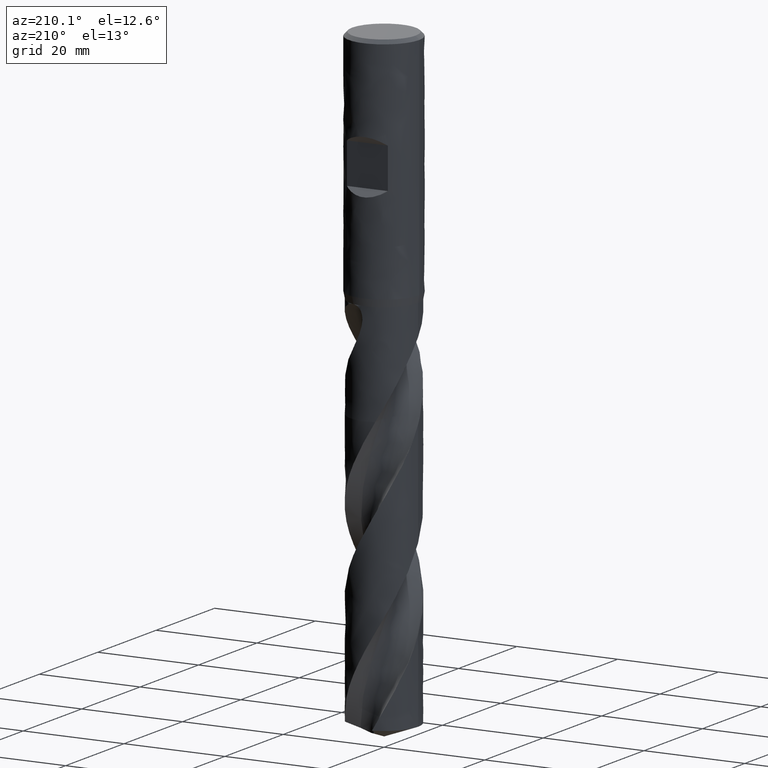
[diagram: clean part render]
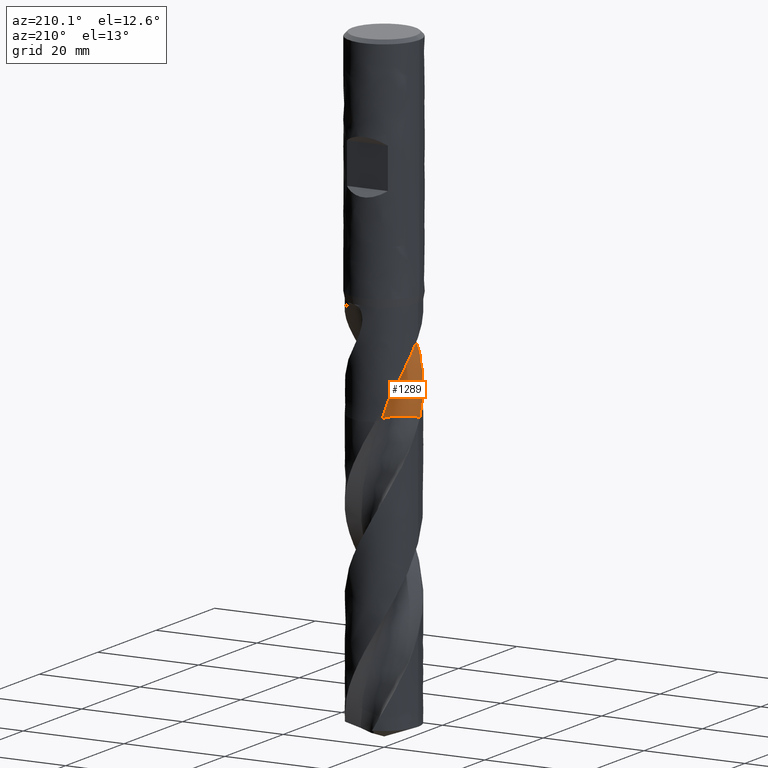
[diagram: same view with one face highlighted and labeled with its STEP entity id]
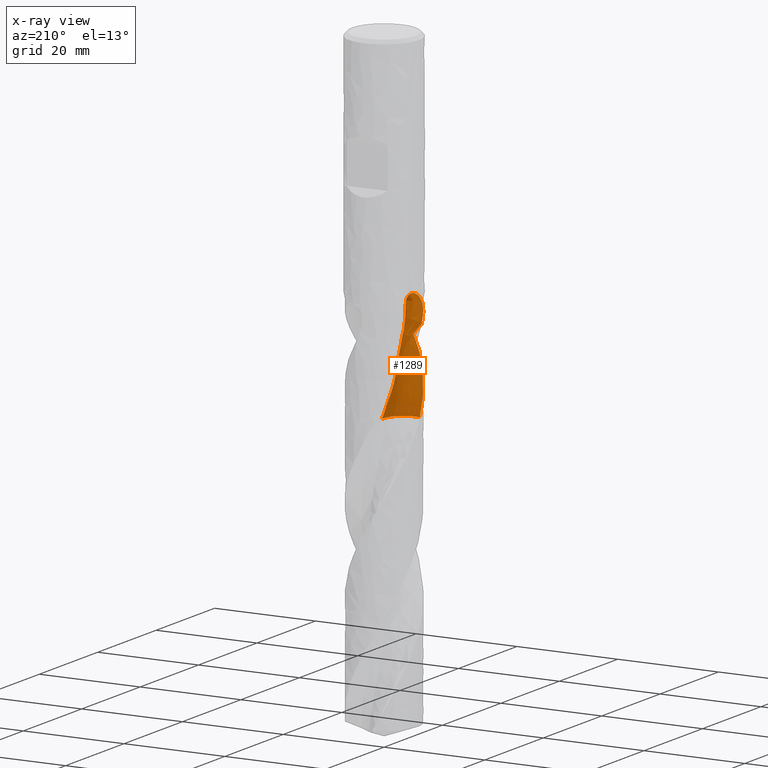
[diagram: x-ray of the same camera — body ghosted, the highlighted face saturated]
A machine part, auxiliary view. The second image highlights one B-rep face of the part: STEP entity #1289.
The next image is the same camera in x-ray: the body ghosted, the highlighted face saturated — about 0% of this face is hidden behind the body in this view.
In plain terms, the highlighted face is a freeform B-spline surface patch.
Its self-contained STEP definition (entity closure, byte-faithful):
#72 = EDGE_CURVE('', #73, #75, #77, .T.);
#73 = VERTEX_POINT('', #74);
#74 = CARTESIAN_POINT('', (-6.54722670223356, -1.64204826651347, -50.9853289528982));
#75 = VERTEX_POINT('', #76);
#76 = CARTESIAN_POINT('', (-2.74245032595894, -6.16777643966184, -47.));
#77 = B_SPLINE_CURVE_WITH_KNOTS('', 3, (#78, #79, #80, #81, #82, #83, #84, #85, #86, #87, #88, #89, #90, #91, #92, #93, #94, #95, #96, #97, #98, #99, #100, #101, #102, #103, #104, #105, #106, #107, #108, #109, #110, #111, #112, #113, #114, #115, #116, #117, #118, #119, #120, #121, #122, #123, #124, #125, #126, #127, #128, #129, #130, #131, #132, #133, #134, #135), .UNSPECIFIED., .F., .U., (4, 3, 3, 3, 3, 3, 3, 3, 3, 3, 3, 3, 3, 3, 3, 3, 3, 3, 3, 4), (0., 0.447005675161444, 0.894185619436533, 1.34151582994481, 1.78897778587421, 2.23655197864527, 2.6842086120813, 3.13192121736932, 3.57966739757167, 4.02742049961439, 4.47514763869665, 4.92280671514513, 5.37034191744391, 5.66765224759957, 5.96487297666363, 6.26197587823822, 6.55892470282943, 6.85567270727081, 7.15215970033952, 7.45692063994909), .UNSPECIFIED.);
#78 = CARTESIAN_POINT('', (-6.54722670223356, -1.64204826651347, -50.9853289528982));
#79 = CARTESIAN_POINT('', (-6.52383816333729, -1.73530378738378, -50.871495970807));
#80 = CARTESIAN_POINT('', (-6.49805232952242, -1.82967051163066, -50.7590243652782));
#81 = CARTESIAN_POINT('', (-6.46970892616913, -1.92493283276296, -50.6480139811013));
#82 = CARTESIAN_POINT('', (-6.44135447288951, -2.02023229275321, -50.5369603185448));
#83 = CARTESIAN_POINT('', (-6.41042866490252, -2.11646671921943, -50.4273199216285));
#84 = CARTESIAN_POINT('', (-6.37678460914436, -2.21339514063378, -50.3191911248318));
#85 = CARTESIAN_POINT('', (-6.34312924794733, -2.31035613298286, -50.2110259934294));
#86 = CARTESIAN_POINT('', (-6.30673833457635, -2.40805596596318, -50.1043238123564));
#87 = CARTESIAN_POINT('', (-6.2674758259275, -2.50624156286189, -49.9991959996608));
#88 = CARTESIAN_POINT('', (-6.22820175388406, -2.6044560768838, -49.8940372252558));
#89 = CARTESIAN_POINT('', (-6.18603491741344, -2.70320515293542, -49.790401652276));
#90 = CARTESIAN_POINT('', (-6.14085072235636, -2.8022227616194, -49.688417275917));
#91 = CARTESIAN_POINT('', (-6.09565519375175, -2.90126520688116, -49.5864073188261));
#92 = CARTESIAN_POINT('', (-6.04741614879518, -3.00063003343426, -49.485995281843));
#93 = CARTESIAN_POINT('', (-5.99602227382602, -3.10003498234869, -49.3873271569904));
#94 = CARTESIAN_POINT('', (-5.94461893239232, -3.19945824109916, -49.2886408580205));
#95 = CARTESIAN_POINT('', (-5.89003033678812, -3.29897772345852, -49.1916389227777));
#96 = CARTESIAN_POINT('', (-5.83216335795116, -3.39828935880637, -49.0964817615112));
#97 = CARTESIAN_POINT('', (-5.77428914383223, -3.49761341138594, -49.0013127024593));
#98 = CARTESIAN_POINT('', (-5.71309861062836, -3.59679313478255, -48.9079277478441));
#99 = CARTESIAN_POINT('', (-5.64851279380133, -3.69551122556307, -48.8165206764602));
#100 = CARTESIAN_POINT('', (-5.58392213354743, -3.79423671942182, -48.725106750267));
#101 = CARTESIAN_POINT('', (-5.51588995973561, -3.89257019230152, -48.6356061370521));
#102 = CARTESIAN_POINT('', (-5.44435316938206, -3.99017776133338, -48.5482537900581));
#103 = CARTESIAN_POINT('', (-5.37281527312015, -4.08778683930947, -48.4609000926584));
#104 = CARTESIAN_POINT('', (-5.29771621088348, -4.18474670410528, -48.3756255492758));
#105 = CARTESIAN_POINT('', (-5.21901158006884, -4.28070299449836, -48.2927169093362));
#106 = CARTESIAN_POINT('', (-5.14031151294167, -4.37665372086663, -48.2098130768534));
#107 = CARTESIAN_POINT('', (-5.05793629823484, -4.47168589548326, -48.1292007283162));
#108 = CARTESIAN_POINT('', (-4.9718649416733, -4.56541991516223, -48.0512331515216));
#109 = CARTESIAN_POINT('', (-4.88580666951678, -4.65913968557262, -47.9732774272106));
#110 = CARTESIAN_POINT('', (-4.79596590011325, -4.75165631556474, -47.8978858022151));
#111 = CARTESIAN_POINT('', (-4.7023529737028, -4.84255888045859, -47.8254989233641));
#112 = CARTESIAN_POINT('', (-4.60876595142848, -4.93343629121502, -47.7531320750756));
#113 = CARTESIAN_POINT('', (-4.51129825753647, -5.02280692739477, -47.6836818578372));
#114 = CARTESIAN_POINT('', (-4.4100052784259, -5.11022048881021, -47.6177061280667));
#115 = CARTESIAN_POINT('', (-4.34271347901632, -5.16829179732632, -47.5738765792411));
#116 = CARTESIAN_POINT('', (-4.27368461828995, -5.2255421784225, -47.5315496124812));
#117 = CARTESIAN_POINT('', (-4.20295108385997, -5.28182754230771, -47.4909267444121));
#118 = CARTESIAN_POINT('', (-4.13223886655643, -5.33809594334456, -47.4503161189493));
#119 = CARTESIAN_POINT('', (-4.059773859824, -5.39343871954625, -47.4113801304974));
#120 = CARTESIAN_POINT('', (-3.98560704696645, -5.44770010804297, -47.3743590672945));
#121 = CARTESIAN_POINT('', (-3.91146963612734, -5.50193998564708, -47.3373526803861));
#122 = CARTESIAN_POINT('', (-3.83557245849917, -5.55514229974721, -47.3022298506109));
#123 = CARTESIAN_POINT('', (-3.757992985626, -5.60713730168843, -47.2692793143132));
#124 = CARTESIAN_POINT('', (-3.68045374531565, -5.65910533912338, -47.2363458660992));
#125 = CARTESIAN_POINT('', (-3.60116138117258, -5.70991533084474, -47.2055513822662));
#126 = CARTESIAN_POINT('', (-3.52023206356115, -5.7593807148578, -47.1772451276677));
#127 = CARTESIAN_POINT('', (-3.43935747671926, -5.80881264648781, -47.1489580159847));
#128 = CARTESIAN_POINT('', (-3.35675791648745, -5.8569560061402, -47.1231240263672));
#129 = CARTESIAN_POINT('', (-3.27260731757885, -5.9036040979159, -47.100167380578));
#130 = CARTESIAN_POINT('', (-3.18853073521966, -5.95021115931469, -47.0772309268222));
#131 = CARTESIAN_POINT('', (-3.10279164458078, -5.99538747516859, -47.0571356852069));
#132 = CARTESIAN_POINT('', (-3.01565156437777, -6.03890268527867, -47.0403963992122));
#133 = CARTESIAN_POINT('', (-2.9260797000425, -6.08363225733575, -47.0231899765109));
#134 = CARTESIAN_POINT('', (-2.83486815396566, -6.1266836236331, -47.0094994745342));
#135 = CARTESIAN_POINT('', (-2.74245032595894, -6.16777643966184, -47.));
#198 = EDGE_CURVE('', #199, #201, #203, .T.);
#199 = VERTEX_POINT('', #200);
#200 = CARTESIAN_POINT('', (-2.44736411556141, -6.29455424691108, -46.98));
#201 = VERTEX_POINT('', #202);
#202 = CARTESIAN_POINT('', (-2.17123797644978, -6.39126166336681, -47.));
#203 = B_SPLINE_CURVE_WITH_KNOTS('', 3, (#204, #205, #206, #207, #208, #209, #210), .UNSPECIFIED., .F., .U., (4, 3, 4), (0., 0.19689662018653, 0.293451821174731), .UNSPECIFIED.);
#204 = CARTESIAN_POINT('', (-2.44736411556586, -6.29455424690935, -46.98));
#205 = CARTESIAN_POINT('', (-2.38618775038303, -6.31832466022391, -46.9800797117905));
#206 = CARTESIAN_POINT('', (-2.324400739008, -6.34077124786212, -46.9829088490396));
#207 = CARTESIAN_POINT('', (-2.26246833527036, -6.36165776112208, -46.9888852602719));
#208 = CARTESIAN_POINT('', (-2.23209759713933, -6.37190019943233, -46.9918160042694));
#209 = CARTESIAN_POINT('', (-2.20166392342064, -6.38177779128928, -46.9955059529503));
#210 = CARTESIAN_POINT('', (-2.17123797644978, -6.39126166336683, -47.));
#277 = EDGE_CURVE('', #278, #75, #280, .T.);
#278 = VERTEX_POINT('', #279);
#279 = CARTESIAN_POINT('', (-2.45269745120124, -6.292478009045, -46.98));
#280 = B_SPLINE_CURVE_WITH_KNOTS('', 3, (#281, #282, #283, #284, #285, #286, #287), .UNSPECIFIED., .F., .U., (4, 3, 4), (0., 0.197586106187652, 0.316253546517637), .UNSPECIFIED.);
#281 = CARTESIAN_POINT('', (-2.45269745121663, -6.29247800903901, -46.98));
#282 = CARTESIAN_POINT('', (-2.51405737798457, -6.26854558933843, -46.9800798798869));
#283 = CARTESIAN_POINT('', (-2.57493647482688, -6.24323220399331, -46.9829136822102));
#284 = CARTESIAN_POINT('', (-2.63501549998615, -6.21675174322126, -46.9881197978159));
#285 = CARTESIAN_POINT('', (-2.67109811870227, -6.20084795039287, -46.9912465177301));
#286 = CARTESIAN_POINT('', (-2.70692645308333, -6.18450904810479, -46.9952317038916));
#287 = CARTESIAN_POINT('', (-2.74245032595892, -6.16777643966185, -47.));
#289 = EDGE_CURVE('', #199, #278, #290, .T.);
#290 = LINE('', #291, #292);
#291 = CARTESIAN_POINT('', (-2.44736411556141, -6.29455424691108, -46.98));
#292 = VECTOR('', #293, 0.00572321873805209);
#293 = DIRECTION('', (-0.0053333356398273, 0.00207623786607858, 7.105427357601E-15));
#1228 = VERTEX_POINT('', #1229);
#1229 = CARTESIAN_POINT('', (-3.8737926401678, -5.52776904193561, -57.0572358756335));
#1230 = VERTEX_POINT('', #1231);
#1231 = CARTESIAN_POINT('', (-5.18745572070359, -4.31888911014621, -60.1904486721386));
#1268 = EDGE_CURVE('', #1230, #1228, #1269, .T.);
#1269 = (
   BOUNDED_CURVE ()
   B_SPLINE_CURVE (3, (#1270, #1271, #1272, #1273, #1274, #1275), .UNSPECIFIED., .F., .U.)
   B_SPLINE_CURVE_WITH_KNOTS ((4, 1, 1, 4), (63.8595513278614, 64.6393548387097, 65.8824193548387, 66.9927641243665), .UNSPECIFIED.)
   CURVE ()
   GEOMETRIC_REPRESENTATION_ITEM ()
   RATIONAL_B_SPLINE_CURVE ((1., 1., 1., 1., 1., 1.))
   REPRESENTATION_ITEM ('')
);
#1270 = CARTESIAN_POINT('', (-5.1874557207036, -4.3188891101462, -60.1904486721386));
#1271 = CARTESIAN_POINT('', (-5.0762760431642, -4.41979413030436, -59.9305141685225));
#1272 = CARTESIAN_POINT('', (-4.77517443499129, -4.66612801323165, -59.2562248261967));
#1273 = CARTESIAN_POINT('', (-4.27550000826762, -4.9837177858849, -58.211820560695));
#1274 = CARTESIAN_POINT('', (-3.9973649673455, -5.33624240329892, -57.4273507988094));
#1275 = CARTESIAN_POINT('', (-3.8737926401678, -5.52776904193561, -57.0572358756335));
#1289 = ADVANCED_FACE('', (#1290), #1498, .T.);
#1290 = FACE_OUTER_BOUND('', #1291, .T.);
#1291 = EDGE_LOOP('', (#1292, #1303, #1352, #1353, #1474, #1475, #1476, #1477, #1478));
#1292 = ORIENTED_EDGE('', *, *, #1293, .T.);
#1293 = EDGE_CURVE('', #1294, #1296, #1298, .T.);
#1294 = VERTEX_POINT('', #1295);
#1295 = CARTESIAN_POINT('', (-1.71941206617508, 3.65714564950166, -67.25));
#1296 = VERTEX_POINT('', #1297);
#1297 = CARTESIAN_POINT('', (-6.71701838527332, -0.666456309070734, -67.25));
#1298 = CIRCLE('', #1299, 4.0501235625442);
#1299 = AXIS2_PLACEMENT_3D('', #1300, #1301, #1302);
#1300 = CARTESIAN_POINT('', (-5.7506711112143, 3.2666948056221, -67.25));
#1301 = DIRECTION('', (0., 0., -1.));
#1302 = DIRECTION('', (0.995342222051411, 0.0964046731323755, 0.));
#1303 = ORIENTED_EDGE('', *, *, #1304, .F.);
#1304 = EDGE_CURVE('', #1230, #1296, #1305, .T.);
#1305 = B_SPLINE_CURVE_WITH_KNOTS('', 3, (#1306, #1307, #1308, #1309, #1310, #1311, #1312, #1313, #1314, #1315, #1316, #1317, #1318, #1319, #1320, #1321, #1322, #1323, #1324, #1325, #1326, #1327, #1328, #1329, #1330, #1331, #1332, #1333, #1334, #1335, #1336, #1337, #1338, #1339, #1340, #1341, #1342, #1343, #1344, #1345, #1346, #1347, #1348, #1349, #1350, #1351), .UNSPECIFIED., .F., .U., (4, 3, 3, 3, 3, 3, 3, 3, 3, 3, 3, 3, 3, 3, 3, 4), (0., 0.443322495899435, 0.886607032329049, 1.55142846746694, 2.2162179070127, 2.88094727961477, 3.32414938394597, 3.76733655054551, 4.21053520502023, 4.65372307709331, 4.94920949350656, 5.61374677102459, 6.27824074149479, 7.27444952689723, 7.93881647012239, 8.12340381640079), .UNSPECIFIED.);
#1306 = CARTESIAN_POINT('', (-5.18745572070359, -4.31888911014621, -60.1904486721386));
#1307 = CARTESIAN_POINT('', (-5.23255945043565, -4.26471462340748, -60.320325469454));
#1308 = CARTESIAN_POINT('', (-5.27696470528058, -4.20965287196573, -60.4500798026125));
#1309 = CARTESIAN_POINT('', (-5.32062456864377, -4.15372774740284, -60.5797077344166));
#1310 = CARTESIAN_POINT('', (-5.36428069363302, -4.09780741142636, -60.7093245668345));
#1311 = CARTESIAN_POINT('', (-5.40719593969398, -4.04101820672637, -60.8388212621043));
#1312 = CARTESIAN_POINT('', (-5.44932354246726, -3.98338711770675, -60.9681943162301));
#1313 = CARTESIAN_POINT('', (-5.51250493282261, -3.89695418318759, -61.1622231452184));
#1314 = CARTESIAN_POINT('', (-5.57392086849325, -3.80861809049205, -61.3559970830385));
#1315 = CARTESIAN_POINT('', (-5.63342060237858, -3.71847715021871, -61.549501913184));
#1316 = CARTESIAN_POINT('', (-5.6929174727443, -3.62834054812192, -61.7429974306008));
#1317 = CARTESIAN_POINT('', (-5.75050910330292, -3.53638267722435, -61.9362489244888));
#1318 = CARTESIAN_POINT('', (-5.80604736686905, -3.44271897977087, -62.1292453310374));
#1319 = CARTESIAN_POINT('', (-5.86158061228425, -3.34906374528582, -62.3222242994265));
#1320 = CARTESIAN_POINT('', (-5.91506526129088, -3.25369474207618, -62.5149800193583));
#1321 = CARTESIAN_POINT('', (-5.96635233420531, -3.15676097038153, -62.707514708675));
#1322 = CARTESIAN_POINT('', (-6.00054751133684, -3.09213128292292, -62.8358854155806));
#1323 = CARTESIAN_POINT('', (-6.03376895398541, -3.02680088372566, -62.9641684226657));
#1324 = CARTESIAN_POINT('', (-6.06597649399452, -2.96081562653028, -63.092363450771));
#1325 = CARTESIAN_POINT('', (-6.09818294847723, -2.89483259330915, -63.2205541581773));
#1326 = CARTESIAN_POINT('', (-6.1293786869943, -2.82818799388666, -63.3486640225721));
#1327 = CARTESIAN_POINT('', (-6.1595205628668, -2.76094303375152, -63.4767009567124));
#1328 = CARTESIAN_POINT('', (-6.18966322004827, -2.69369633055664, -63.604741209704));
#1329 = CARTESIAN_POINT('', (-6.21875371865611, -2.62584467601466, -63.7327171986797));
#1330 = CARTESIAN_POINT('', (-6.24674528747483, -2.55747401030998, -63.8606504992893));
#1331 = CARTESIAN_POINT('', (-6.27473617529793, -2.4891050079677, -63.9885806874611));
#1332 = CARTESIAN_POINT('', (-6.3016298221982, -2.42021234590782, -64.1164768497568));
#1333 = CARTESIAN_POINT('', (-6.32737969800506, -2.35090751780528, -64.2443741836839));
#1334 = CARTESIAN_POINT('', (-6.34454789913309, -2.30469994628405, -64.3296471057388));
#1335 = CARTESIAN_POINT('', (-6.3612071496803, -2.2583114131598, -64.41492614548));
#1336 = CARTESIAN_POINT('', (-6.37734911431886, -2.21176813298693, -64.5002169309143));
#1337 = CARTESIAN_POINT('', (-6.41365175511333, -2.10709413453962, -64.6920325379999));
#1338 = CARTESIAN_POINT('', (-6.44734867683898, -2.00160888673902, -64.8839178900426));
#1339 = CARTESIAN_POINT('', (-6.47841898311349, -1.89541221881543, -65.0758154111083));
#1340 = CARTESIAN_POINT('', (-6.50948726457571, -1.78922247159339, -65.267700426457));
#1341 = CARTESIAN_POINT('', (-6.53793446832971, -1.68230515730875, -65.4596264446667));
#1342 = CARTESIAN_POINT('', (-6.56374245402018, -1.57473330989508, -65.6515212209429));
#1343 = CARTESIAN_POINT('', (-6.60243376383024, -1.41346168935707, -65.9392097034492));
#1344 = CARTESIAN_POINT('', (-6.63519723609327, -1.25067374018655, -66.2269103743257));
#1345 = CARTESIAN_POINT('', (-6.66191356972879, -1.08692575158655, -66.5145612908183));
#1346 = CARTESIAN_POINT('', (-6.67973056669941, -0.977722989836656, -66.7063943311473));
#1347 = CARTESIAN_POINT('', (-6.69486234179394, -0.868076315877112, -66.8982433380574));
#1348 = CARTESIAN_POINT('', (-6.70728776239558, -0.758149637221092, -67.0900879057658));
#1349 = CARTESIAN_POINT('', (-6.71074003442482, -0.727607669254097, -67.1433898949938));
#1350 = CARTESIAN_POINT('', (-6.71398383780436, -0.697040626245875, -67.196696875235));
#1351 = CARTESIAN_POINT('', (-6.71701838527332, -0.666456309070734, -67.25));
#1352 = ORIENTED_EDGE('', *, *, #1268, .T.);
#1353 = ORIENTED_EDGE('', *, *, #1354, .T.);
#1354 = EDGE_CURVE('', #1228, #201, #1355, .T.);
#1355 = B_SPLINE_CURVE_WITH_KNOTS('', 3, (#1356, #1357, #1358, #1359, #1360, #1361, #1362, #1363, #1364, #1365, #1366, #1367, #1368, #1369, #1370, #1371, #1372, #1373, #1374, #1375, #1376, #1377, #1378, #1379, #1380, #1381, #1382, #1383, #1384, #1385, #1386, #1387, #1388, #1389, #1390, #1391, #1392, #1393, #1394, #1395, #1396, #1397, #1398, #1399, #1400, #1401, #1402, #1403, #1404, #1405, #1406, #1407, #1408, #1409, #1410, #1411, #1412, #1413, #1414, #1415, #1416, #1417, #1418, #1419, #1420, #1421, #1422, #1423, #1424, #1425, #1426, #1427, #1428, #1429, #1430, #1431, #1432, #1433, #1434, #1435, #1436, #1437, #1438, #1439, #1440, #1441, #1442, #1443, #1444, #1445, #1446, #1447, #1448, #1449, #1450, #1451, #1452, #1453, #1454, #1455, #1456, #1457, #1458, #1459, #1460, #1461, #1462, #1463, #1464, #1465, #1466, #1467, #1468, #1469, #1470, #1471, #1472, #1473), .UNSPECIFIED., .F., .U., (4, 3, 3, 3, 3, 3, 3, 3, 3, 3, 3, 3, 3, 3, 3, 3, 3, 3, 3, 3, 3, 3, 3, 3, 3, 3, 3, 3, 3, 3, 3, 3, 3, 3, 3, 3, 3, 3, 3, 4), (0., 0.197017275695434, 0.640213026727463, 1.08326223483906, 1.52614046559948, 1.96882705650014, 2.41132286088462, 2.85363119329142, 3.29575577284397, 3.73768990085209, 4.17944159727816, 4.6210303804982, 5.06247458952747, 5.50380122508634, 5.94505486718475, 6.38628397998251, 6.82754792790252, 7.26894239894586, 7.71058975673982, 8.00554870894374, 8.30067858833429, 8.5960390467978, 8.79310162148612, 9.08902835786164, 9.28640288151484, 9.32534335015109, 9.52300075887349, 9.72089513743481, 9.91905869901922, 10.1175160292991, 10.3162744736453, 10.5153120844394, 10.7145673701716, 10.913938218402, 11.1132959630663, 11.3125119649147, 11.5114844060794, 11.7101527693812, 11.9084969608908, 11.9977415892307), .UNSPECIFIED.);
#1356 = CARTESIAN_POINT('', (-3.8737926401678, -5.52776904193561, -57.0572358756335));
#1357 = CARTESIAN_POINT('', (-3.84432775108923, -5.54841767424821, -57.0022966207147));
#1358 = CARTESIAN_POINT('', (-3.81457599010076, -5.56891592868017, -56.9474537066416));
#1359 = CARTESIAN_POINT('', (-3.78455348172066, -5.58924457722115, -56.8926973145499));
#1360 = CARTESIAN_POINT('', (-3.71701702786189, -5.63497442819886, -56.7695213126933));
#1361 = CARTESIAN_POINT('', (-3.64810210152141, -5.67984889805717, -56.6467731429346));
#1362 = CARTESIAN_POINT('', (-3.57801170127151, -5.72366423417413, -56.524330211667));
#1363 = CARTESIAN_POINT('', (-3.50794447645124, -5.76746508272595, -56.4019277662224));
#1364 = CARTESIAN_POINT('', (-3.43669439400152, -5.81021241833024, -56.2798155513104));
#1365 = CARTESIAN_POINT('', (-3.3644911348265, -5.85172619008049, -56.1578582428034));
#1366 = CARTESIAN_POINT('', (-3.29231573964891, -5.89322394122941, -56.035947998905));
#1367 = CARTESIAN_POINT('', (-3.21917982785218, -5.93349358120599, -55.9141786556292));
#1368 = CARTESIAN_POINT('', (-3.14533850966143, -5.97238190838804, -55.7924058494545));
#1369 = CARTESIAN_POINT('', (-3.07152914368434, -6.01125340802462, -55.6706857361463));
#1370 = CARTESIAN_POINT('', (-2.99700667599659, -6.04874899668077, -55.5489486640114));
#1371 = CARTESIAN_POINT('', (-2.92205426625909, -6.08474312235474, -55.4270423017278));
#1372 = CARTESIAN_POINT('', (-2.84713415907928, -6.12072173548783, -55.3051884779459));
#1373 = CARTESIAN_POINT('', (-2.77177674055466, -6.1552040828554, -55.1831510906455));
#1374 = CARTESIAN_POINT('', (-2.69627030744686, -6.18810362139993, -55.0607900006046));
#1375 = CARTESIAN_POINT('', (-2.62079586411208, -6.2209892214133, -54.938480751226));
#1376 = CARTESIAN_POINT('', (-2.5451632711564, -6.25229756680881, -54.8158333727693));
#1377 = CARTESIAN_POINT('', (-2.46966505903469, -6.28197854948455, -54.6927217729814));
#1378 = CARTESIAN_POINT('', (-2.39419821193813, -6.31164720147401, -54.5696613187547));
#1379 = CARTESIAN_POINT('', (-2.31885403995536, -6.33969445527025, -54.4461217591436));
#1380 = CARTESIAN_POINT('', (-2.24393725871369, -6.36610128563445, -54.3219867338101));
#1381 = CARTESIAN_POINT('', (-2.16905274895692, -6.3924967408753, -54.1979051814305));
#1382 = CARTESIAN_POINT('', (-2.09458729279089, -6.41725593163412, -54.0732077686219));
#1383 = CARTESIAN_POINT('', (-2.02086793401737, -6.44038762756251, -53.9477843964566));
#1384 = CARTESIAN_POINT('', (-1.947179006791, -6.46350977466537, -53.8224127993926));
#1385 = CARTESIAN_POINT('', (-1.87422251124553, -6.48500998018359, -53.6962943807077));
#1386 = CARTESIAN_POINT('', (-1.80233550286846, -6.50492788085308, -53.569336654309));
#1387 = CARTESIAN_POINT('', (-1.73047500563579, -6.5248384360181, -53.4424257485346));
#1388 = CARTESIAN_POINT('', (-1.65966820989109, -6.54317206046539, -53.3146507083584));
#1389 = CARTESIAN_POINT('', (-1.59026973336622, -6.55999559261585, -53.1859356762294));
#1390 = CARTESIAN_POINT('', (-1.52089397759188, -6.57681361681719, -53.0572627848256));
#1391 = CARTESIAN_POINT('', (-1.45291000164101, -6.59212629977711, -52.9276187834857));
#1392 = CARTESIAN_POINT('', (-1.38670221616771, -6.60602429330046, -52.7969438841047));
#1393 = CARTESIAN_POINT('', (-1.32051206435898, -6.61991858525677, -52.6663037884454));
#1394 = CARTESIAN_POINT('', (-1.25607730385153, -6.63240324566316, -52.5345956615855));
#1395 = CARTESIAN_POINT('', (-1.19380536489183, -6.64359306029172, -52.4017874697972));
#1396 = CARTESIAN_POINT('', (-1.13154372543356, -6.65478102417477, -52.2690012438925));
#1397 = CARTESIAN_POINT('', (-1.07142115242092, -6.66467880858804, -52.1350684313664));
#1398 = CARTESIAN_POINT('', (-1.01388426369552, -6.67342031493825, -51.999987135191));
#1399 = CARTESIAN_POINT('', (-0.956350573447147, -6.68216133534792, -51.8649133481881));
#1400 = CARTESIAN_POINT('', (-0.901376134610867, -6.68975024022903, -51.7286314858368));
#1401 = CARTESIAN_POINT('', (-0.849473711603073, -6.69633440124485, -51.5911751429627));
#1402 = CARTESIAN_POINT('', (-0.797567190889125, -6.70291908208145, -51.4537079478841));
#1403 = CARTESIAN_POINT('', (-0.748702808124832, -6.70850304434267, -51.3149892874629));
#1404 = CARTESIAN_POINT('', (-0.703464337917372, -6.7132434728139, -51.1751111841432));
#1405 = CARTESIAN_POINT('', (-0.658212486452607, -6.71798530347432, -51.0351917057531));
#1406 = CARTESIAN_POINT('', (-0.616553756701516, -6.72188726588264, -50.8940107357322));
#1407 = CARTESIAN_POINT('', (-0.579182758510351, -6.72510574877781, -50.7517408326816));
#1408 = CARTESIAN_POINT('', (-0.541790349470341, -6.72832607562829, -50.6093894193815));
#1409 = CARTESIAN_POINT('', (-0.508653994961064, -6.73086626478905, -50.4658099081943));
#1410 = CARTESIAN_POINT('', (-0.480626187403154, -6.73286703180616, -50.3213006470301));
#1411 = CARTESIAN_POINT('', (-0.461907513773705, -6.73420326564195, -50.224788578058));
#1412 = CARTESIAN_POINT('', (-0.44545696012061, -6.73529965940975, -50.1277983812117));
#1413 = CARTESIAN_POINT('', (-0.431578389513726, -6.73618884041301, -50.0304672538391));
#1414 = CARTESIAN_POINT('', (-0.417691776346986, -6.73707853669206, -49.9330797235817));
#1415 = CARTESIAN_POINT('', (-0.406369725341744, -6.73776182832631, -49.8352806535715));
#1416 = CARTESIAN_POINT('', (-0.397969559472723, -6.73825795215151, -49.7372645747432));
#1417 = CARTESIAN_POINT('', (-0.389562830722091, -6.73875446358833, -49.6391719179127));
#1418 = CARTESIAN_POINT('', (-0.384074577339882, -6.73906457471609, -49.5407715334656));
#1419 = CARTESIAN_POINT('', (-0.381927870307664, -6.73918623439672, -49.4423415289761));
#1420 = CARTESIAN_POINT('', (-0.380495601353752, -6.73926740494347, -49.3766696708939));
#1421 = CARTESIAN_POINT('', (-0.380551080869951, -6.73926433100634, -49.3109450365284));
#1422 = CARTESIAN_POINT('', (-0.382236070578344, -6.73916876078574, -49.2452791960708));
#1423 = CARTESIAN_POINT('', (-0.384766401393416, -6.73902524401945, -49.1466695138992));
#1424 = CARTESIAN_POINT('', (-0.390973756267927, -6.7386755684079, -49.0480638428963));
#1425 = CARTESIAN_POINT('', (-0.40139053526363, -6.73805503377649, -48.9499751165246));
#1426 = CARTESIAN_POINT('', (-0.408338223794443, -6.73764115523079, -48.8845527897674));
#1427 = CARTESIAN_POINT('', (-0.417166320851032, -6.73710554131922, -48.8192977415849));
#1428 = CARTESIAN_POINT('', (-0.428044571150469, -6.73641431661637, -48.7544154759914));
#1429 = CARTESIAN_POINT('', (-0.430190765891118, -6.73627794332277, -48.7416147062587));
#1430 = CARTESIAN_POINT('', (-0.432416987036339, -6.73613545709875, -48.728827150121));
#1431 = CARTESIAN_POINT('', (-0.434724557607755, -6.73598653197976, -48.7160546251296));
#1432 = CARTESIAN_POINT('', (-0.446437524491917, -6.73523060494178, -48.6512227347835));
#1433 = CARTESIAN_POINT('', (-0.460255792422476, -6.73430953831964, -48.5867301551871));
#1434 = CARTESIAN_POINT('', (-0.476351001309317, -6.73317085209915, -48.5228506853291));
#1435 = CARTESIAN_POINT('', (-0.492465506609494, -6.73203080071712, -48.4588946309009));
#1436 = CARTESIAN_POINT('', (-0.51088487474905, -6.73067124621673, -48.3954695630746));
#1437 = CARTESIAN_POINT('', (-0.531766845023371, -6.72902103002613, -48.3329189915326));
#1438 = CARTESIAN_POINT('', (-0.552677219701736, -6.72736856915234, -48.2702833364624));
#1439 = CARTESIAN_POINT('', (-0.576092538243449, -6.72542198915133, -48.2084245615764));
#1440 = CARTESIAN_POINT('', (-0.602132996461561, -6.72308975505847, -48.1477644024757));
#1441 = CARTESIAN_POINT('', (-0.62821205850461, -6.72075406353196, -48.0870143173781));
#1442 = CARTESIAN_POINT('', (-0.656977802362131, -6.71802671316105, -48.0273490462495));
#1443 = CARTESIAN_POINT('', (-0.688478906378796, -6.71479685437106, -47.9692681179749));
#1444 = CARTESIAN_POINT('', (-0.720027806188699, -6.71156209500162, -47.9110990650416));
#1445 = CARTESIAN_POINT('', (-0.754397372156353, -6.70781500708186, -47.854385574481));
#1446 = CARTESIAN_POINT('', (-0.791523469064593, -6.70343125555263, -47.7996875752723));
#1447 = CARTESIAN_POINT('', (-0.828701711483581, -6.69904134681913, -47.7449127499131));
#1448 = CARTESIAN_POINT('', (-0.868748308880449, -6.69399981381722, -47.6920134620836));
#1449 = CARTESIAN_POINT('', (-0.9114480820495, -6.68818079852273, -47.6415690081418));
#1450 = CARTESIAN_POINT('', (-0.95419455327952, -6.68235541933657, -47.5910693862679));
#1451 = CARTESIAN_POINT('', (-0.999731713760563, -6.67573155985159, -47.5428798689712));
#1452 = CARTESIAN_POINT('', (-1.04767560689224, -6.66819884397001, -47.4975361929235));
#1453 = CARTESIAN_POINT('', (-1.0956473061423, -6.66066175932369, -47.4521662188107));
#1454 = CARTESIAN_POINT('', (-1.14618372202986, -6.65218882523616, -47.4095006520358));
#1455 = CARTESIAN_POINT('', (-1.19875082959828, -6.64270249586246, -47.3699628867752));
#1456 = CARTESIAN_POINT('', (-1.25131448221542, -6.63321678997382, -47.3304277201177));
#1457 = CARTESIAN_POINT('', (-1.30607859106306, -6.622685805902, -47.2938905205664));
#1458 = CARTESIAN_POINT('', (-1.36241491714864, -6.61107597850235, -47.2606132630739));
#1459 = CARTESIAN_POINT('', (-1.41871118825912, -6.59947440565851, -47.2273596656212));
#1460 = CARTESIAN_POINT('', (-1.47675113975708, -6.5867589852038, -47.1972547823803));
#1461 = CARTESIAN_POINT('', (-1.53588592960045, -6.57294107772581, -47.1703882522722));
#1462 = CARTESIAN_POINT('', (-1.59494842148729, -6.559140063966, -47.1435545690759));
#1463 = CARTESIAN_POINT('', (-1.65526956411954, -6.54420030107815, -47.119870868871));
#1464 = CARTESIAN_POINT('', (-1.71624450218998, -6.52817009648972, -47.0992800468689));
#1465 = CARTESIAN_POINT('', (-1.77712625585382, -6.51216438991884, -47.0787206926074));
#1466 = CARTESIAN_POINT('', (-1.83881095743855, -6.49503231202387, -47.0611893635157));
#1467 = CARTESIAN_POINT('', (-1.90077681190783, -6.47684703473175, -47.0465269561632));
#1468 = CARTESIAN_POINT('', (-1.96264155525015, -6.45869143077984, -47.0318884738021));
#1469 = CARTESIAN_POINT('', (-2.02491808498488, -6.43944820553169, -47.0200750939783));
#1470 = CARTESIAN_POINT('', (-2.08718049106336, -6.41920381338094, -47.0108710206805));
#1471 = CARTESIAN_POINT('', (-2.11519535375098, -6.41009488389976, -47.0067296637068));
#1472 = CARTESIAN_POINT('', (-2.14322543911349, -6.40077807625755, -47.0031131339447));
#1473 = CARTESIAN_POINT('', (-2.17123797644978, -6.39126166336683, -47.));
#1474 = ORIENTED_EDGE('', *, *, #198, .F.);
#1475 = ORIENTED_EDGE('', *, *, #289, .T.);
#1476 = ORIENTED_EDGE('', *, *, #277, .T.);
#1477 = ORIENTED_EDGE('', *, *, #72, .F.);
#1478 = ORIENTED_EDGE('', *, *, #1479, .F.);
#1479 = EDGE_CURVE('', #1294, #73, #1480, .T.);
#1480 = (
   BOUNDED_CURVE ()
   B_SPLINE_CURVE (3, (#1481, #1482, #1483, #1484, #1485, #1486, #1487, #1488, #1489, #1490, #1491, #1492, #1493, #1494, #1495, #1496, #1497), .UNSPECIFIED., .F., .U.)
   B_SPLINE_CURVE_WITH_KNOTS ((4, 1, 1, 1, 1, 1, 1, 1, 1, 1, 1, 1, 1, 1, 4), (56.8, 57.1809677419355, 58.4240322580645, 59.6670967741935, 60.9101612903226, 62.1532258064516, 63.3962903225806, 64.6393548387097, 65.8824193548387, 67.1254838709677, 68.3685483870968, 69.6116129032258, 70.8546774193548, 72.0977419354839, 73.0646710471018), .UNSPECIFIED.)
   CURVE ()
   GEOMETRIC_REPRESENTATION_ITEM ()
   RATIONAL_B_SPLINE_CURVE ((1., 1., 1., 1., 1., 1., 1., 1., 1., 1., 1., 1., 1., 1., 1., 1., 1.))
   REPRESENTATION_ITEM ('')
);
#1481 = CARTESIAN_POINT('', (-1.71941206617508, 3.65714564950166, -67.25));
#1482 = CARTESIAN_POINT('', (-1.75919940094765, 3.63965222849172, -67.1230107526882));
#1483 = CARTESIAN_POINT('', (-1.92769954308868, 3.56235166533914, -66.5816666666667));
#1484 = CARTESIAN_POINT('', (-2.2162097603789, 3.40563889929958, -65.6259677419355));
#1485 = CARTESIAN_POINT('', (-2.56822099500787, 3.16232297525617, -64.3829032258065));
#1486 = CARTESIAN_POINT('', (-2.89775914535633, 2.88616602301898, -63.1398387096774));
#1487 = CARTESIAN_POINT('', (-3.17962241285386, 2.5601480138284, -61.8967741935484));
#1488 = CARTESIAN_POINT('', (-3.40236696343504, 2.19260786924067, -60.6537096774194));
#1489 = CARTESIAN_POINT('', (-3.55731332265815, 1.79244104326041, -59.4106451612903));
#1490 = CARTESIAN_POINT('', (-3.6501120623541, 1.38369944445425, -58.1675806451613));
#1491 = CARTESIAN_POINT('', (-3.88232130656106, 1.0279231190384, -56.9245161290323));
#1492 = CARTESIAN_POINT('', (-4.22961733607607, 0.659465990949319, -55.6814516129032));
#1493 = CARTESIAN_POINT('', (-4.70202719948211, 0.237226949829675, -54.4383870967742));
#1494 = CARTESIAN_POINT('', (-5.28744078201428, -0.28687856030986, -53.1953225806452));
#1495 = CARTESIAN_POINT('', (-5.91646081728806, -0.907514652994153, -52.0443031993532));
#1496 = CARTESIAN_POINT('', (-6.35285707790825, -1.40341128286668, -51.3076386567709));
#1497 = CARTESIAN_POINT('', (-6.54722670223356, -1.64204826651347, -50.9853289528982));
#1498 = (
   BOUNDED_SURFACE ()
   B_SPLINE_SURFACE (3, 2, ((#1499, #1500, #1501, #1502, #1503), (#1504, #1505, #1506, #1507, #1508), (#1509, #1510, #1511, #1512, #1513), (#1514, #1515, #1516, #1517, #1518), (#1519, #1520, #1521, #1522, #1523), (#1524, #1525, #1526, #1527, #1528), (#1529, #1530, #1531, #1532, #1533), (#1534, #1535, #1536, #1537, #1538), (#1539, #1540, #1541, #1542, #1543), (#1544, #1545, #1546, #1547, #1548), (#1549, #1550, #1551, #1552, #1553), (#1554, #1555, #1556, #1557, #1558), (#1559, #1560, #1561, #1562, #1563), (#1564, #1565, #1566, #1567, #1568), (#1569, #1570, #1571, #1572, #1573), (#1574, #1575, #1576, #1577, #1578), (#1579, #1580, #1581, #1582, #1583), (#1584, #1585, #1586, #1587, #1588), (#1589, #1590, #1591, #1592, #1593)), .UNSPECIFIED., .F., .F., .U.)
   B_SPLINE_SURFACE_WITH_KNOTS ((4, 1, 1, 1, 1, 1, 1, 1, 1, 1, 1, 1, 1, 1, 1, 1, 4), (3, 2, 3), (56.799999999946, 57.1809677419355, 58.4240322580645, 59.6670967741935, 60.9101612903226, 62.1532258064516, 63.3962903225806, 64.6393548387097, 65.8824193548387, 67.1254838709677, 68.3685483870968, 69.6116129032258, 70.8546774193548, 72.0977419354839, 73.3408064516129, 74.5838709677419, 77.07), (0., 0.5, 1.), .UNSPECIFIED.)
   GEOMETRIC_REPRESENTATION_ITEM ()
   RATIONAL_B_SPLINE_SURFACE (((1., 0.887010833178222, 1., 0.887010833178222, 1.), (1., 0.887010833178222, 1., 0.887010833178222, 1.), (1., 0.887010833178222, 1., 0.887010833178222, 1.), (1., 0.887010833178222, 1., 0.887010833178222, 1.), (1., 0.887010833178222, 1., 0.887010833178222, 1.), (1., 0.887010833178222, 1., 0.887010833178222, 1.), (1., 0.887010833178222, 1., 0.887010833178222, 1.), (1., 0.887010833178222, 1., 0.887010833178222, 1.), (1., 0.887010833178222, 1., 0.887010833178222, 1.), (1., 0.887010833178222, 1., 0.887010833178222, 1.), (1., 0.887010833178222, 1., 0.887010833178222, 1.), (1., 0.887010833178222, 1., 0.887010833178222, 1.), (1., 0.887010833178222, 1., 0.887010833178222, 1.), (1., 0.887010833178222, 1., 0.887010833178222, 1.), (1., 0.887010833178222, 1., 0.887010833178222, 1.), (1., 0.887010833178222, 1., 0.887010833178222, 1.), (1., 0.887010833178222, 1., 0.887010833178222, 1.), (1., 0.887010833178222, 1., 0.887010833178222, 1.), (1., 0.887010833178222, 1., 0.887010833178222, 1.)))
   REPRESENTATION_ITEM ('')
   SURFACE ()
);
#1499 = CARTESIAN_POINT('', (-6.76253808231434, -0.654992323121439, -67.250000000054));
#1500 = CARTESIAN_POINT('', (-4.72103735329628, -1.18173707350357, -67.250000000054));
#1501 = CARTESIAN_POINT('', (-3.11859660124402, 0.188434045298234, -67.250000000054));
#1502 = CARTESIAN_POINT('', (-1.51615584919176, 1.55860516410004, -67.250000000054));
#1503 = CARTESIAN_POINT('', (-1.71941206615817, 3.6571456495091, -67.250000000054));
#1504 = CARTESIAN_POINT('', (-6.75733224220603, -0.727878754236444, -67.1230107527242));
#1505 = CARTESIAN_POINT('', (-4.70961374324004, -1.23281700862146, -67.1230107527242));
#1506 = CARTESIAN_POINT('', (-3.12146946063382, 0.154955101407446, -67.1230107527242));
#1507 = CARTESIAN_POINT('', (-1.53332517802759, 1.54272721143635, -67.1230107527242));
#1508 = CARTESIAN_POINT('', (-1.75919940093645, 3.63965222849686, -67.1230107527242));
#1509 = CARTESIAN_POINT('', (-6.73019402393973, -1.03837202999572, -66.5816666666847));
#1510 = CARTESIAN_POINT('', (-4.65743488130259, -1.44988889055437, -66.5816666666847));
#1511 = CARTESIAN_POINT('', (-3.13145420126872, 0.011979624077935, -66.5816666666847));
#1512 = CARTESIAN_POINT('', (-1.60547352123485, 1.47384813871024, -66.5816666666847));
#1513 = CARTESIAN_POINT('', (-1.92769954308325, 3.56235166534209, -66.5816666666847));
#1514 = CARTESIAN_POINT('', (-6.64516203798889, -1.58377571000138, -65.6259677419355));
#1515 = CARTESIAN_POINT('', (-4.53931204936586, -1.82722580352165, -65.6259677419355));
#1516 = CARTESIAN_POINT('', (-3.1320234756121, -0.241851717445833, -65.6259677419355));
#1517 = CARTESIAN_POINT('', (-1.72473490185833, 1.34352236862998, -65.6259677419355));
#1518 = CARTESIAN_POINT('', (-2.2162097603789, 3.40563889929958, -65.6259677419355));
#1519 = CARTESIAN_POINT('', (-6.45890517138301, -2.27868148205543, -64.3829032258065));
#1520 = CARTESIAN_POINT('', (-4.33361448497849, -2.29972588397821, -64.3829032258064));
#1521 = CARTESIAN_POINT('', (-3.09735926200464, -0.570860246561609, -64.3829032258065));
#1522 = CARTESIAN_POINT('', (-1.86110403903079, 1.15800539085499, -64.3829032258064));
#1523 = CARTESIAN_POINT('', (-2.56822099500787, 3.16232297525617, -64.3829032258065));
#1524 = CARTESIAN_POINT('', (-6.20794521749658, -2.95657003724122, -63.1398387096774));
#1525 = CARTESIAN_POINT('', (-4.08388763614978, -2.75330376264684, -63.1398387096774));
#1526 = CARTESIAN_POINT('', (-3.03208424240547, -0.896788907286883, -63.1398387096774));
#1527 = CARTESIAN_POINT('', (-1.98028084866114, 0.959725948073074, -63.1398387096774));
#1528 = CARTESIAN_POINT('', (-2.89775914535633, 2.88616602301898, -63.1398387096774));
#1529 = CARTESIAN_POINT('', (-5.85108664452739, -3.58715983172293, -61.8967741935484));
#1530 = CARTESIAN_POINT('', (-3.76416268879318, -3.16213581964327, -61.8967741935484));
#1531 = CARTESIAN_POINT('', (-2.91531157169449, -1.20884403681565, -61.8967741935484));
#1532 = CARTESIAN_POINT('', (-2.0664604545958, 0.744447746011966, -61.8967741935484));
#1533 = CARTESIAN_POINT('', (-3.17962241285386, 2.5601480138284, -61.8967741935484));
#1534 = CARTESIAN_POINT('', (-5.39506350610341, -4.14761719817154, -60.6537096774194));
#1535 = CARTESIAN_POINT('', (-3.38163347483349, -3.51076149578724, -60.6537096774194));
#1536 = CARTESIAN_POINT('', (-2.74845910318072, -1.4961707453962, -60.6537096774194));
#1537 = CARTESIAN_POINT('', (-2.11528473152794, 0.518420004994831, -60.6537096774194));
#1538 = CARTESIAN_POINT('', (-3.40236696343504, 2.19260786924067, -60.6537096774194));
#1539 = CARTESIAN_POINT('', (-4.84905376980548, -4.61917079490599, -59.4106451612903));
#1540 = CARTESIAN_POINT('', (-2.94479392950058, -3.78685735244485, -59.4106451612903));
#1541 = CARTESIAN_POINT('', (-2.53434661429334, -1.74958363314773, -59.4106451612903));
#1542 = CARTESIAN_POINT('', (-2.1238992990861, 0.287690086149387, -59.4106451612903));
#1543 = CARTESIAN_POINT('', (-3.55731332265815, 1.79244104326041, -59.4106451612903));
#1544 = CARTESIAN_POINT('', (-4.25433430149792, -4.99717056962072, -58.1675806451613));
#1545 = CARTESIAN_POINT('', (-2.48337795444297, -3.99151023816836, -58.1675806451613));
#1546 = CARTESIAN_POINT('', (-2.29138784033547, -1.96400465703767, -58.1675806451613));
#1547 = CARTESIAN_POINT('', (-2.09939772622797, 0.063500924093013, -58.1675806451613));
#1548 = CARTESIAN_POINT('', (-3.6501120623541, 1.38369944445425, -58.1675806451613));
#1549 = CARTESIAN_POINT('', (-3.822287892089, -5.56596358580166, -56.9245161290323));
#1550 = CARTESIAN_POINT('', (-2.11694905434233, -4.34858562959019, -56.9245161290323));
#1551 = CARTESIAN_POINT('', (-2.13602452251954, -2.25339452462849, -56.9245161290323));
#1552 = CARTESIAN_POINT('', (-2.15509999069676, -0.158203419666801, -56.9245161290323));
#1553 = CARTESIAN_POINT('', (-3.88232130656106, 1.0279231190384, -56.9245161290323));
#1554 = CARTESIAN_POINT('', (-3.43522348587496, -6.32414756623215, -55.6814516129032));
#1555 = CARTESIAN_POINT('', (-1.76228418448299, -4.84459899910267, -55.6814516129032));
#1556 = CARTESIAN_POINT('', (-2.01470085514794, -2.6255731558536, -55.6814516129032));
#1557 = CARTESIAN_POINT('', (-2.2671175258129, -0.406547312604537, -55.6814516129032));
#1558 = CARTESIAN_POINT('', (-4.22961733607607, 0.659465990949319, -55.6814516129032));
#1559 = CARTESIAN_POINT('', (-3.03373218254514, -7.31083382336166, -54.4383870967742));
#1560 = CARTESIAN_POINT('', (-1.37314723050458, -5.50095127121261, -54.4383870967742));
#1561 = CARTESIAN_POINT('', (-1.90324382397085, -3.10257372855746, -54.4383870967742));
#1562 = CARTESIAN_POINT('', (-2.43334041743712, -0.704196185902319, -54.4383870967742));
#1563 = CARTESIAN_POINT('', (-4.70202719948211, 0.237226949829675, -54.4383870967742));
#1564 = CARTESIAN_POINT('', (-2.53483342514361, -8.53403069111529, -53.1953225806452));
#1565 = CARTESIAN_POINT('', (-0.88990513011634, -6.31450836243334, -53.1953225806452));
#1566 = CARTESIAN_POINT('', (-1.76453927348648, -3.69399627916597, -53.1953225806452));
#1567 = CARTESIAN_POINT('', (-2.63917341685662, -1.07348419589861, -53.1953225806452));
#1568 = CARTESIAN_POINT('', (-5.28744078201428, -0.28687856030986, -53.1953225806452));
#1569 = CARTESIAN_POINT('', (-1.85759729175497, -9.98854403096809, -51.9522580645161));
#1570 = CARTESIAN_POINT('', (-0.255778729367693, -7.27300125481376, -51.9522580645161));
#1571 = CARTESIAN_POINT('', (-1.56145576311367, -4.40329695654874, -51.9522580645161));
#1572 = CARTESIAN_POINT('', (-2.86713279685964, -1.53359265828373, -51.9522580645161));
#1573 = CARTESIAN_POINT('', (-5.96676251932976, -0.957145904877801, -51.9522580645161));
#1574 = CARTESIAN_POINT('', (-0.920047835825115, -11.650595620247, -50.7091935483871));
#1575 = CARTESIAN_POINT('', (0.584779700485506, -8.35088501912523, -50.7091935483871));
#1576 = CARTESIAN_POINT('', (-1.25505136838548, -5.22556621887282, -50.7091935483871));
#1577 = CARTESIAN_POINT('', (-3.09488243725647, -2.10024741862041, -50.7091935483871));
#1578 = CARTESIAN_POINT('', (-6.71027746950901, -1.81473957992278, -50.7091935483871));
#1579 = CARTESIAN_POINT('', (0.781081951875379, -14.0883073173124, -49.0517741935484));
#1580 = CARTESIAN_POINT('', (2.04858021566788, -9.8972005909102, -49.0517741935484));
#1581 = CARTESIAN_POINT('', (-0.657566289870553, -6.45500673649518, -49.0517741935484));
#1582 = CARTESIAN_POINT('', (-3.36371279540898, -3.01281288208015, -49.0517741935484));
#1583 = CARTESIAN_POINT('', (-7.73557479698263, -3.25519703999263, -49.0517741935484));
#1584 = CARTESIAN_POINT('', (2.67306861465577, -16.0799418023089, -47.8087096774194));
#1585 = CARTESIAN_POINT('', (3.60023850187719, -11.1072602137573, -47.8087096774194));
#1586 = CARTESIAN_POINT('', (0.0586590128214157, -7.49555412056683, -47.8087096774194));
#1587 = CARTESIAN_POINT('', (-3.48292047623436, -3.88384802737634, -47.8087096774194));
#1588 = CARTESIAN_POINT('', (-8.47282344822893, -4.71335059576878, -47.8087096774194));
#1589 = CARTESIAN_POINT('', (4.28775118271064, -17.3774546675698, -46.98));
#1590 = CARTESIAN_POINT('', (4.88178495565541, -11.8550385594116, -46.98));
#1591 = CARTESIAN_POINT('', (0.69881028580099, -8.20090682856222, -46.98));
#1592 = CARTESIAN_POINT('', (-3.48416438405343, -4.5467750977128, -46.98));
#1593 = CARTESIAN_POINT('', (-8.87670956596179, -5.87734349359524, -46.98));